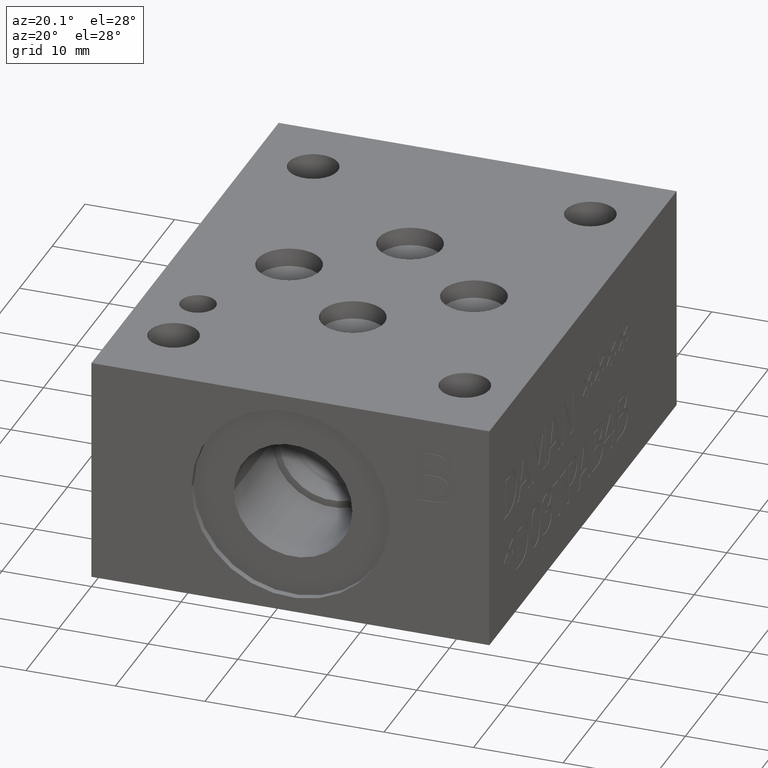
[diagram: clean part render]
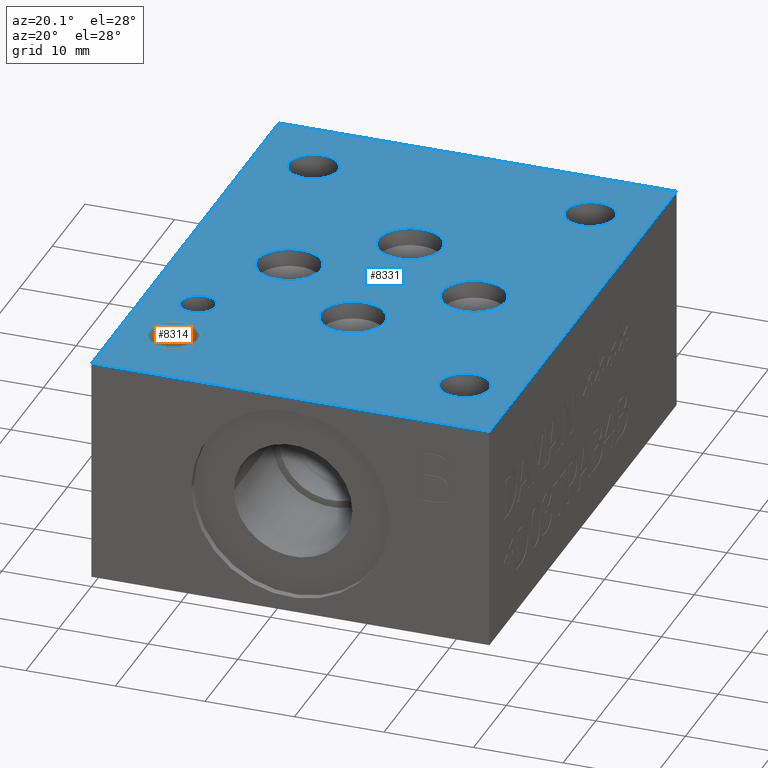
[diagram: same view with the hole feature highlighted: cylindrical wall and planar end face, labeled with their STEP entity ids]
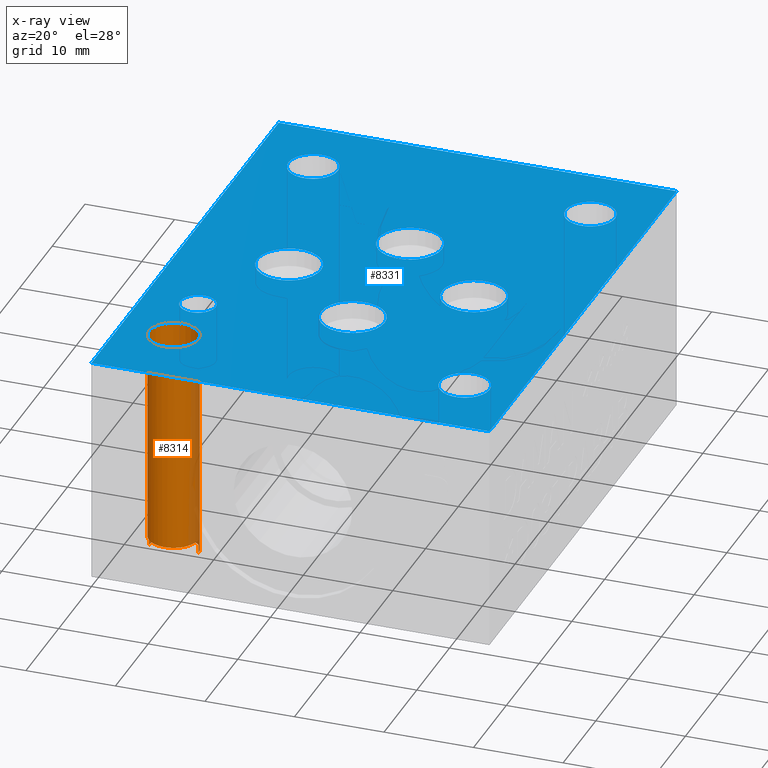
[diagram: x-ray of the same camera — body ghosted, the hole faces saturated]
A machine part, auxiliary view. The highlighted faces form one hole feature of diameter 5.5372 mm: the cylindrical wall (entity #8314, orange) and its adjacent planar end face (entity #8331, blue) — they share a circular edge in the B-rep.
The next image is the same camera in x-ray (body ghosted, the hole faces saturated) — the bore reads through the body.
Wall:
#35=CYLINDRICAL_SURFACE('',#8712,2.7686);
#89=CIRCLE('',#8676,2.7686);
#90=CIRCLE('',#8677,2.7686);
#108=CIRCLE('',#8713,2.7686);
#884=FACE_OUTER_BOUND('',#1369,.T.);
#1369=EDGE_LOOP('',(#7364,#7365,#7366,#7367,#7368,#7369,#7370,#7371));
#2232=LINE('',#13891,#3098);
#2233=LINE('',#13893,#3099);
#2248=LINE('',#13973,#3114);
#3098=VECTOR('',#10225,10.);
#3099=VECTOR('',#10226,10.);
#3114=VECTOR('',#10327,2.7686);
#3324=B_SPLINE_CURVE_WITH_KNOTS('',3,(#13865,#13866,#13867,#13868,#13869,
#13870,#13871,#13872,#13873,#13874,#13875,#13876,#13877,#13878,#13879,#13880,
#13881,#13882,#13883,#13884,#13885,#13886,#13887),.UNSPECIFIED.,.F.,.F.,
(4,3,2,2,2,2,2,2,2,2,4),(-0.000634750072574311,0.,0.104103153814706,0.208206307629412,
0.312045088090274,0.415883868551136,0.519722649011999,0.623561429472861,
0.727664583287567,0.831767737102273,0.832402487174847),.UNSPECIFIED.);
#4034=VERTEX_POINT('',#13863);
#4035=VERTEX_POINT('',#13864);
#4036=VERTEX_POINT('',#13890);
#4037=VERTEX_POINT('',#13892);
#4040=VERTEX_POINT('',#13902);
#4059=VERTEX_POINT('',#13971);
#5133=EDGE_CURVE('',#4034,#4035,#3324,.T.);
#5135=EDGE_CURVE('',#4035,#4036,#2232,.T.);
#5136=EDGE_CURVE('',#4037,#4034,#2233,.T.);
#5142=EDGE_CURVE('',#4037,#4040,#89,.T.);
#5143=EDGE_CURVE('',#4040,#4036,#90,.T.);
#5174=EDGE_CURVE('',#4059,#4059,#108,.T.);
#5175=EDGE_CURVE('',#4059,#4040,#2248,.T.);
#7364=ORIENTED_EDGE('',*,*,#5174,.F.);
#7365=ORIENTED_EDGE('',*,*,#5175,.T.);
#7366=ORIENTED_EDGE('',*,*,#5142,.F.);
#7367=ORIENTED_EDGE('',*,*,#5136,.T.);
#7368=ORIENTED_EDGE('',*,*,#5133,.T.);
#7369=ORIENTED_EDGE('',*,*,#5135,.T.);
#7370=ORIENTED_EDGE('',*,*,#5143,.F.);
#7371=ORIENTED_EDGE('',*,*,#5175,.F.);
#8314=ADVANCED_FACE('',(#884),#35,.F.);
#8676=AXIS2_PLACEMENT_3D('',#13903,#10238,#10239);
#8677=AXIS2_PLACEMENT_3D('',#13904,#10240,#10241);
#8712=AXIS2_PLACEMENT_3D('',#13970,#10323,#10324);
#8713=AXIS2_PLACEMENT_3D('',#13972,#10325,#10326);
#10225=DIRECTION('',(0.,0.,-1.));
#10226=DIRECTION('',(0.,0.,1.));
#10238=DIRECTION('center_axis',(0.,0.,1.));
#10239=DIRECTION('ref_axis',(1.,0.,0.));
#10240=DIRECTION('center_axis',(0.,0.,1.));
#10241=DIRECTION('ref_axis',(1.,0.,0.));
#10323=DIRECTION('center_axis',(0.,0.,1.));
#10324=DIRECTION('ref_axis',(1.,0.,0.));
#10325=DIRECTION('center_axis',(0.,0.,-1.));
#10326=DIRECTION('ref_axis',(1.,0.,0.));
#10327=DIRECTION('',(0.,0.,-1.));
#13863=CARTESIAN_POINT('',(8.73759271788033,8.75665,1.59845));
#13864=CARTESIAN_POINT('',(3.20040728211967,8.75665,1.59845));
#13865=CARTESIAN_POINT('Ctrl Pts',(8.73759271788033,8.75665,1.59845));
#13866=CARTESIAN_POINT('Ctrl Pts',(8.73758786115779,8.7545324745425,1.59845560804538));
#13867=CARTESIAN_POINT('Ctrl Pts',(8.73758057703097,8.75241580389433,1.5984612138564));
#13868=CARTESIAN_POINT('Ctrl Pts',(8.7375708714064,8.7503,1.59846681740135));
#13869=CARTESIAN_POINT('Ctrl Pts',(8.73597908564605,8.40329435514774,1.59938583533858));
#13870=CARTESIAN_POINT('Ctrl Pts',(8.66505400166396,8.03343421579717,1.60036625578624));
#13871=CARTESIAN_POINT('Ctrl Pts',(8.38031546753343,7.35355644689025,1.6021700212815));
#13872=CARTESIAN_POINT('Ctrl Pts',(8.16650201020749,7.04353882021973,1.60299332103706));
#13873=CARTESIAN_POINT('Ctrl Pts',(7.67479150433125,6.55500852494801,1.60429135974655));
#13874=CARTESIAN_POINT('Ctrl Pts',(7.36426270683346,6.34358413122637,1.60485353643975));
#13875=CARTESIAN_POINT('Ctrl Pts',(6.68443159029807,6.063279865105,1.60559905352143));
#13876=CARTESIAN_POINT('Ctrl Pts',(6.31512926820287,5.9944,1.60578234841871));
#13877=CARTESIAN_POINT('Ctrl Pts',(5.62287073179713,5.9944,1.60578234841871));
#13878=CARTESIAN_POINT('Ctrl Pts',(5.25356840970192,6.063279865105,1.60559905352143));
#13879=CARTESIAN_POINT('Ctrl Pts',(4.57373729316654,6.34358413122638,1.60485353643975));
#13880=CARTESIAN_POINT('Ctrl Pts',(4.26320849566875,6.55500852494801,1.60429135974656));
#13881=CARTESIAN_POINT('Ctrl Pts',(3.77149798979251,7.04353882021973,1.60299332103707));
#13882=CARTESIAN_POINT('Ctrl Pts',(3.55768453246657,7.35355644689025,1.6021700212815));
#13883=CARTESIAN_POINT('Ctrl Pts',(3.27294599833604,8.03343421579717,1.60036625578624));
#13884=CARTESIAN_POINT('Ctrl Pts',(3.20202091435395,8.40329435514774,1.59938583533858));
#13885=CARTESIAN_POINT('Ctrl Pts',(3.20041942296903,8.75241580389433,1.5984612138564));
#13886=CARTESIAN_POINT('Ctrl Pts',(3.20041213884221,8.7545324745425,1.59845560804538));
#13887=CARTESIAN_POINT('Ctrl Pts',(3.20040728211967,8.75665,1.59845));
#13890=CARTESIAN_POINT('',(3.20040728211967,8.75665,0.));
#13891=CARTESIAN_POINT('',(3.20040728211967,8.75665,0.799225000000002));
#13892=CARTESIAN_POINT('',(8.73759271788033,8.75665,0.));
#13893=CARTESIAN_POINT('',(8.73759271788033,8.75665,0.799225000000002));
#13902=CARTESIAN_POINT('',(3.2004,8.763,0.));
#13903=CARTESIAN_POINT('Origin',(5.969,8.763,0.));
#13904=CARTESIAN_POINT('Origin',(5.969,8.763,0.));
#13970=CARTESIAN_POINT('Origin',(5.969,8.763,-51.3273419323255));
#13971=CARTESIAN_POINT('',(3.2004,8.763,25.4));
#13972=CARTESIAN_POINT('Origin',(5.969,8.763,25.4));
#13973=CARTESIAN_POINT('',(3.2004,8.763,-51.3273419323255));
End face:
#107=CIRCLE('',#8711,2.7686);
#108=CIRCLE('',#8713,2.7686);
#109=CIRCLE('',#8715,2.7686);
#110=CIRCLE('',#8717,2.7686);
#112=CIRCLE('',#8721,3.5687);
#114=CIRCLE('',#8725,3.5687);
#116=CIRCLE('',#8729,3.5687);
#118=CIRCLE('',#8733,3.5687);
#120=CIRCLE('',#8737,1.9812);
#176=FACE_BOUND('',#1387,.T.);
#177=FACE_BOUND('',#1388,.T.);
#178=FACE_BOUND('',#1389,.T.);
#179=FACE_BOUND('',#1390,.T.);
#180=FACE_BOUND('',#1391,.T.);
#181=FACE_BOUND('',#1392,.T.);
#182=FACE_BOUND('',#1393,.T.);
#183=FACE_BOUND('',#1394,.T.);
#184=FACE_BOUND('',#1395,.T.);
#471=PLANE('',#8742);
#901=FACE_OUTER_BOUND('',#1386,.T.);
#1386=EDGE_LOOP('',(#7436,#7437,#7438,#7439));
#1387=EDGE_LOOP('',(#7440));
#1388=EDGE_LOOP('',(#7441));
#1389=EDGE_LOOP('',(#7442));
#1390=EDGE_LOOP('',(#7443));
#1391=EDGE_LOOP('',(#7444));
#1392=EDGE_LOOP('',(#7445));
#1393=EDGE_LOOP('',(#7446));
#1394=EDGE_LOOP('',(#7447));
#1395=EDGE_LOOP('',(#7448));
#1752=LINE('',#12400,#2618);
#2166=LINE('',#13384,#3032);
#2212=LINE('',#13718,#3078);
#2261=LINE('',#14028,#3127);
#2618=VECTOR('',#9309,10.);
#3032=VECTOR('',#10035,10.);
#3078=VECTOR('',#10107,10.);
#3127=VECTOR('',#10390,10.);
#3663=VERTEX_POINT('',#12397);
#3664=VERTEX_POINT('',#12399);
#3950=VERTEX_POINT('',#13382);
#4001=VERTEX_POINT('',#13717);
#4058=VERTEX_POINT('',#13967);
#4059=VERTEX_POINT('',#13971);
#4060=VERTEX_POINT('',#13975);
#4061=VERTEX_POINT('',#13979);
#4064=VERTEX_POINT('',#13988);
#4067=VERTEX_POINT('',#13997);
#4070=VERTEX_POINT('',#14006);
#4073=VERTEX_POINT('',#14015);
#4076=VERTEX_POINT('',#14024);
#4583=EDGE_CURVE('',#3664,#3663,#1752,.T.);
#5013=EDGE_CURVE('',#3663,#3950,#2166,.T.);
#5088=EDGE_CURVE('',#4001,#3664,#2212,.T.);
#5172=EDGE_CURVE('',#4058,#4058,#107,.T.);
#5174=EDGE_CURVE('',#4059,#4059,#108,.T.);
#5176=EDGE_CURVE('',#4060,#4060,#109,.T.);
#5178=EDGE_CURVE('',#4061,#4061,#110,.T.);
#5182=EDGE_CURVE('',#4064,#4064,#112,.T.);
#5186=EDGE_CURVE('',#4067,#4067,#114,.T.);
#5190=EDGE_CURVE('',#4070,#4070,#116,.T.);
#5194=EDGE_CURVE('',#4073,#4073,#118,.T.);
#5198=EDGE_CURVE('',#4076,#4076,#120,.T.);
#5200=EDGE_CURVE('',#3950,#4001,#2261,.T.);
#7436=ORIENTED_EDGE('',*,*,#5088,.T.);
#7437=ORIENTED_EDGE('',*,*,#4583,.T.);
#7438=ORIENTED_EDGE('',*,*,#5013,.T.);
#7439=ORIENTED_EDGE('',*,*,#5200,.T.);
#7440=ORIENTED_EDGE('',*,*,#5172,.T.);
#7441=ORIENTED_EDGE('',*,*,#5174,.T.);
#7442=ORIENTED_EDGE('',*,*,#5176,.T.);
#7443=ORIENTED_EDGE('',*,*,#5178,.T.);
#7444=ORIENTED_EDGE('',*,*,#5182,.T.);
#7445=ORIENTED_EDGE('',*,*,#5186,.T.);
#7446=ORIENTED_EDGE('',*,*,#5190,.T.);
#7447=ORIENTED_EDGE('',*,*,#5194,.T.);
#7448=ORIENTED_EDGE('',*,*,#5198,.T.);
#8331=ADVANCED_FACE('',(#901,#176,#177,#178,#179,#180,#181,#182,#183,#184),
#471,.T.);
#8711=AXIS2_PLACEMENT_3D('',#13968,#10320,#10321);
#8713=AXIS2_PLACEMENT_3D('',#13972,#10325,#10326);
#8715=AXIS2_PLACEMENT_3D('',#13976,#10330,#10331);
#8717=AXIS2_PLACEMENT_3D('',#13980,#10335,#10336);
#8721=AXIS2_PLACEMENT_3D('',#13989,#10345,#10346);
#8725=AXIS2_PLACEMENT_3D('',#13998,#10355,#10356);
#8729=AXIS2_PLACEMENT_3D('',#14007,#10365,#10366);
#8733=AXIS2_PLACEMENT_3D('',#14016,#10375,#10376);
#8737=AXIS2_PLACEMENT_3D('',#14025,#10385,#10386);
#8742=AXIS2_PLACEMENT_3D('',#14032,#10397,#10398);
#9309=DIRECTION('',(0.,1.,0.));
#10035=DIRECTION('',(-1.,0.,0.));
#10107=DIRECTION('',(1.,0.,0.));
#10320=DIRECTION('center_axis',(0.,0.,-1.));
#10321=DIRECTION('ref_axis',(1.,0.,0.));
#10325=DIRECTION('center_axis',(0.,0.,-1.));
#10326=DIRECTION('ref_axis',(1.,0.,0.));
#10330=DIRECTION('center_axis',(0.,0.,-1.));
#10331=DIRECTION('ref_axis',(1.,0.,0.));
#10335=DIRECTION('center_axis',(0.,0.,-1.));
#10336=DIRECTION('ref_axis',(1.,0.,0.));
#10345=DIRECTION('center_axis',(0.,0.,-1.));
#10346=DIRECTION('ref_axis',(1.,0.,0.));
#10355=DIRECTION('center_axis',(0.,0.,-1.));
#10356=DIRECTION('ref_axis',(1.,0.,0.));
#10365=DIRECTION('center_axis',(0.,0.,-1.));
#10366=DIRECTION('ref_axis',(1.,0.,0.));
#10375=DIRECTION('center_axis',(0.,0.,-1.));
#10376=DIRECTION('ref_axis',(1.,0.,0.));
#10385=DIRECTION('center_axis',(0.,0.,-1.));
#10386=DIRECTION('ref_axis',(1.,0.,0.));
#10390=DIRECTION('',(0.,-1.,0.));
#10397=DIRECTION('center_axis',(0.,0.,1.));
#10398=DIRECTION('ref_axis',(1.,0.,0.));
#12397=CARTESIAN_POINT('',(44.45,57.15,25.4));
#12399=CARTESIAN_POINT('',(44.45,0.,25.4));
#12400=CARTESIAN_POINT('',(44.45,0.,25.4));
#13382=CARTESIAN_POINT('',(0.,57.15,25.4));
#13384=CARTESIAN_POINT('',(44.45,57.15,25.4));
#13717=CARTESIAN_POINT('',(0.,0.,25.4));
#13718=CARTESIAN_POINT('',(0.,0.,25.4));
#13967=CARTESIAN_POINT('',(3.9878,49.2252,25.4));
#13968=CARTESIAN_POINT('Origin',(6.7564,49.2252,25.4));
#13971=CARTESIAN_POINT('',(3.2004,8.763,25.4));
#13972=CARTESIAN_POINT('Origin',(5.969,8.763,25.4));
#13975=CARTESIAN_POINT('',(35.7378,8.763,25.4));
#13976=CARTESIAN_POINT('Origin',(38.5064,8.763,25.4));
#13979=CARTESIAN_POINT('',(34.9504,49.2379,25.4));
#13980=CARTESIAN_POINT('Origin',(37.719,49.2379,25.4));
#13988=CARTESIAN_POINT('',(18.6563,36.5252,25.4));
#13989=CARTESIAN_POINT('Origin',(22.225,36.5252,25.4));
#13997=CARTESIAN_POINT('',(8.3439,27.7876,25.4));
#13998=CARTESIAN_POINT('Origin',(11.9126,27.7876,25.4));
#14006=CARTESIAN_POINT('',(28.9941,27.7876,25.4));
#14007=CARTESIAN_POINT('Origin',(32.5628,27.7876,25.4));
#14015=CARTESIAN_POINT('',(18.6563,19.05,25.4));
#14016=CARTESIAN_POINT('Origin',(22.225,19.05,25.4));
#14024=CARTESIAN_POINT('',(3.9878,16.2306,25.4));
#14025=CARTESIAN_POINT('Origin',(5.969,16.2306,25.4));
#14028=CARTESIAN_POINT('',(0.,57.15,25.4));
#14032=CARTESIAN_POINT('Origin',(22.225,28.575,25.4));